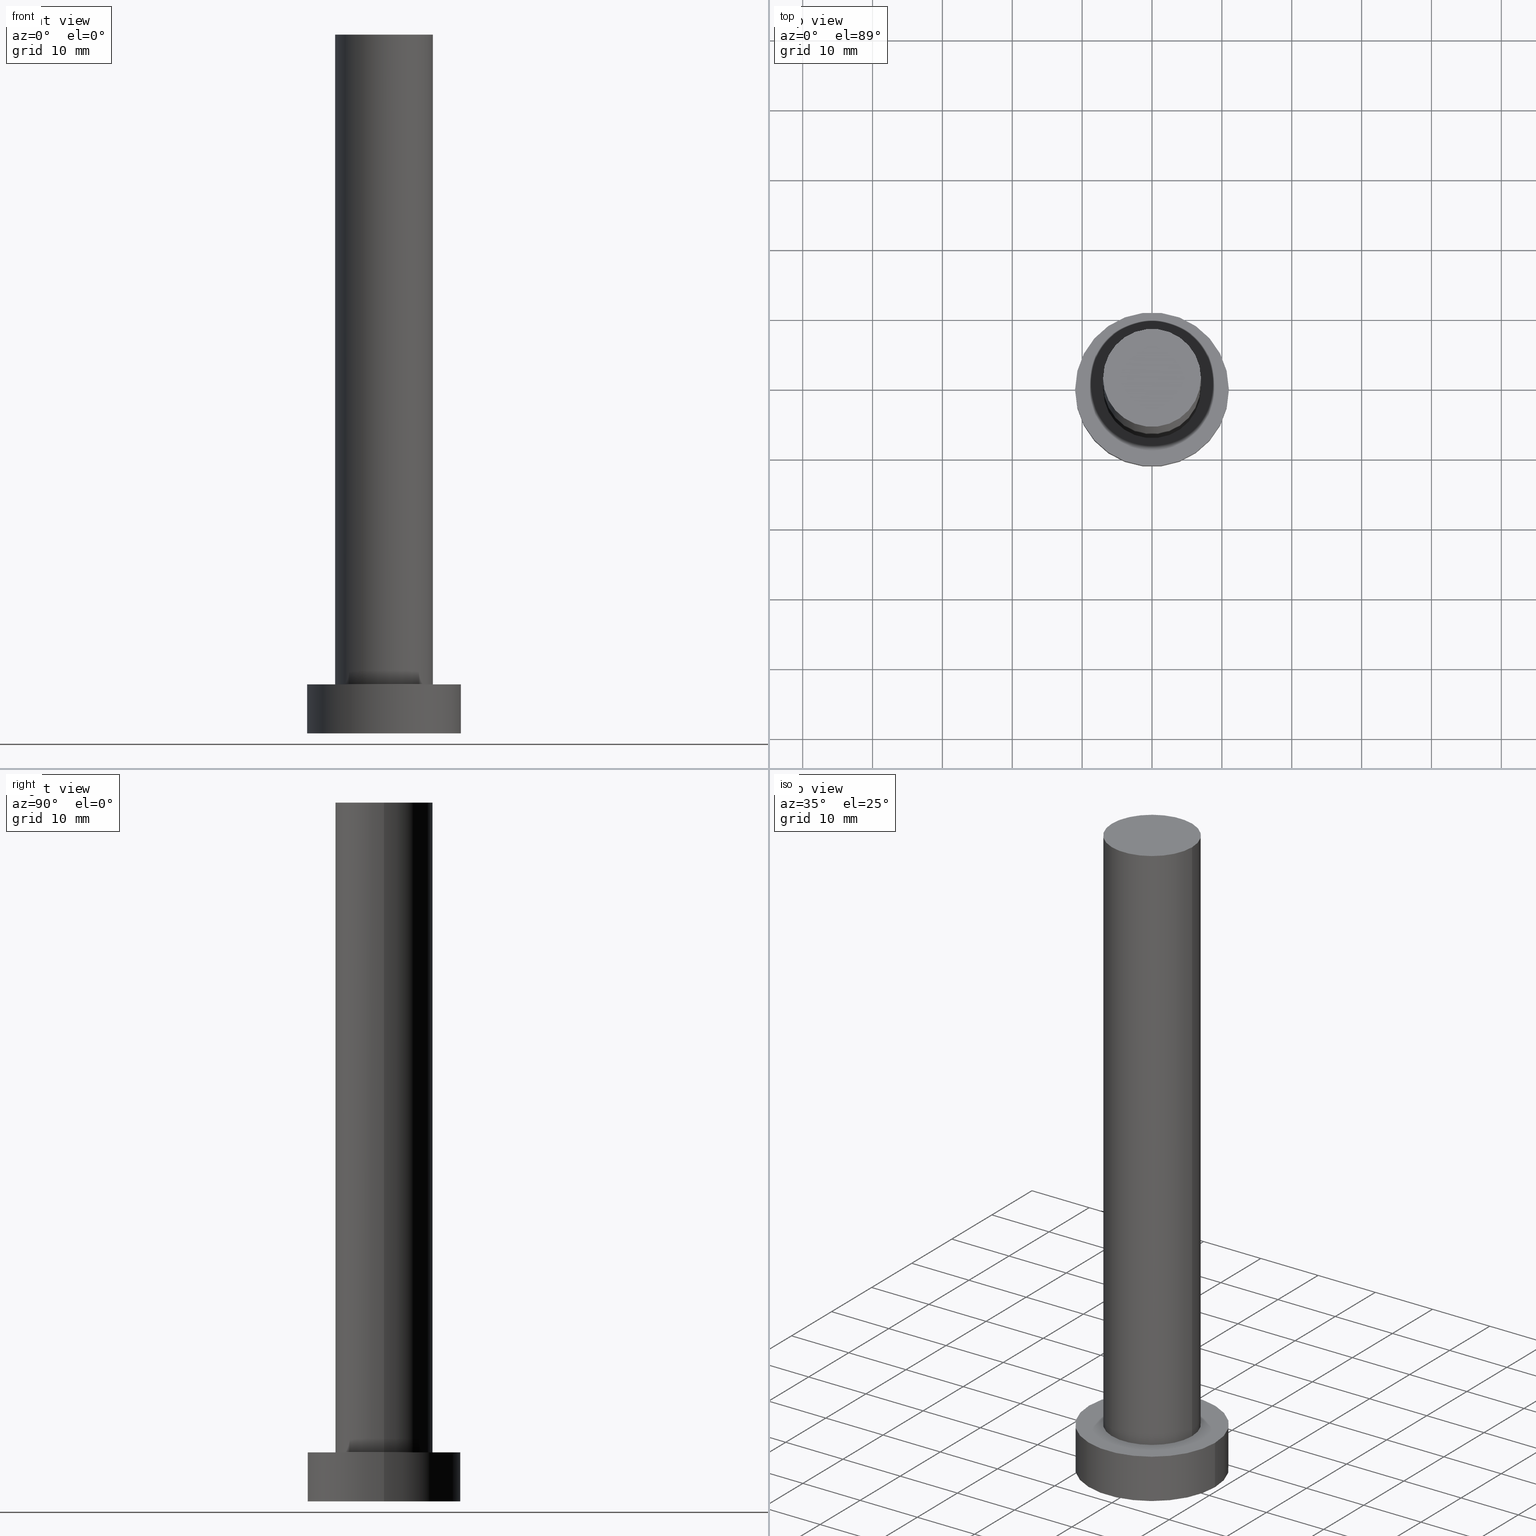
[diagram: canonical four-view strip — front | top / right | iso, engineering-drawing reading convention]
A machine part, canonical four-view strip (front | top / right | iso — engineering-drawing reading convention). The complete STEP part file that produces these views, byte-faithful:
ISO-10303-21;
HEADER;
FILE_DESCRIPTION (( 'STEP AP203' ),
    '1' );
FILE_NAME ('5458.STEP',
    '2023-02-13T08:55:50',
    ( '' ),
    ( '' ),
    'SwSTEP 2.0',
    'SolidWorks 2019',
    '' );
FILE_SCHEMA (( 'CONFIG_CONTROL_DESIGN' ));
ENDSEC;

DATA;
#1 = LINE ( 'NONE', #22, #165 ) ;
#2 = EDGE_CURVE ( 'NONE', #200, #176, #98, .T. ) ;
#3 = ORIENTED_EDGE ( 'NONE', *, *, #239, .F. ) ;
#4 = DATE_TIME_ROLE ( 'classification_date' ) ;
#5 = ORIENTED_EDGE ( 'NONE', *, *, #115, .T. ) ;
#6 = VERTEX_POINT ( 'NONE', #105 ) ;
#7 = COORDINATED_UNIVERSAL_TIME_OFFSET ( 1, 0, .AHEAD. ) ;
#8 = CYLINDRICAL_SURFACE ( 'NONE', #118, 7.000000000000000888 ) ;
#9 = CARTESIAN_POINT ( 'NONE',  ( -11.00000000000000000, 0.000000000000000000, 0.000000000000000000 ) ) ;
#10 = CARTESIAN_POINT ( 'NONE',  ( 0.000000000000000000, 0.000000000000000000, 0.000000000000000000 ) ) ;
#11 = CIRCLE ( 'NONE', #196, 7.000000000000000888 ) ;
#12 = DIRECTION ( 'NONE',  ( -0.000000000000000000, -0.000000000000000000, -1.000000000000000000 ) ) ;
#13 = DIRECTION ( 'NONE',  ( -0.000000000000000000, -0.000000000000000000, -1.000000000000000000 ) ) ;
#14 = AXIS2_PLACEMENT_3D ( 'NONE', #83, #179, #99 ) ;
#15 = CARTESIAN_POINT ( 'NONE',  ( 11.00000000000000000, 1.347111479062088405E-15, 7.000000000000000000 ) ) ;
#16 = PERSON ( 'NEUR�EN�', 'NEUR�EN�', 'NEUR�EN�', ('NEUR�EN�'), ('NEUR�EN�'), ('NEUR�EN�') ) ;
#17 = CARTESIAN_POINT ( 'NONE',  ( 0.000000000000000000, 0.000000000000000000, 0.000000000000000000 ) ) ;
#18 = ORIENTED_EDGE ( 'NONE', *, *, #219, .T. ) ;
#19 = AXIS2_PLACEMENT_3D ( 'NONE', #209, #184, #129 ) ;
#20 = AXIS2_PLACEMENT_3D ( 'NONE', #124, #40, #244 ) ;
#21 = DIRECTION ( 'NONE',  ( -0.000000000000000000, -0.000000000000000000, -1.000000000000000000 ) ) ;
#22 = CARTESIAN_POINT ( 'NONE',  ( -7.000000000000000888, 0.000000000000000000, 100.0000000000000000 ) ) ;
#23 = AXIS2_PLACEMENT_3D ( 'NONE', #17, #135, #92 ) ;
#24 = DIRECTION ( 'NONE',  ( -0.000000000000000000, -0.000000000000000000, -1.000000000000000000 ) ) ;
#25 = CARTESIAN_POINT ( 'NONE',  ( 0.000000000000000000, 0.000000000000000000, 7.000000000000000000 ) ) ;
#26 = CC_DESIGN_DATE_AND_TIME_ASSIGNMENT ( #168, #170, ( #77 ) ) ;
#27 = APPROVAL_DATE_TIME ( #205, #199 ) ;
#28 = ORIENTED_EDGE ( 'NONE', *, *, #55, .F. ) ;
#29 = DIRECTION ( 'NONE',  ( 1.000000000000000000, 0.000000000000000000, -0.000000000000000000 ) ) ;
#30 = SECURITY_CLASSIFICATION_LEVEL ( 'unclassified' ) ;
#31 = FACE_BOUND ( 'NONE', #119, .T. ) ;
#32 = VECTOR ( 'NONE', #177, 1000.000000000000000 ) ;
#33 = CYLINDRICAL_SURFACE ( 'NONE', #94, 11.00000000000000000 ) ;
#34 = CARTESIAN_POINT ( 'NONE',  ( 0.000000000000000000, 0.000000000000000000, 100.0000000000000000 ) ) ;
#35 = AXIS2_PLACEMENT_3D ( 'NONE', #10, #36, #189 ) ;
#36 = DIRECTION ( 'NONE',  ( 0.000000000000000000, 0.000000000000000000, 1.000000000000000000 ) ) ;
#37 = ADVANCED_FACE ( 'NONE', ( #117 ), #8, .T. ) ;
#38 = COORDINATED_UNIVERSAL_TIME_OFFSET ( 1, 0, .AHEAD. ) ;
#39 = PERSON_AND_ORGANIZATION_ROLE ( 'design_owner' ) ;
#40 = DIRECTION ( 'NONE',  ( 0.000000000000000000, 0.000000000000000000, 1.000000000000000000 ) ) ;
#41 = EDGE_CURVE ( 'NONE', #140, #238, #102, .T. ) ;
#42 = CARTESIAN_POINT ( 'NONE',  ( 0.000000000000000000, 0.000000000000000000, 100.0000000000000000 ) ) ;
#43 = ORIENTED_EDGE ( 'NONE', *, *, #197, .T. ) ;
#44 = SECURITY_CLASSIFICATION ( '', '', #30 ) ;
#45 = PERSON_AND_ORGANIZATION ( #16, #52 ) ;
#46 = ADVANCED_FACE ( 'NONE', ( #104 ), #225, .T. ) ;
#47 = DIRECTION ( 'NONE',  ( -1.000000000000000000, 0.000000000000000000, 0.000000000000000000 ) ) ;
#48 = ORIENTED_EDGE ( 'NONE', *, *, #178, .F. ) ;
#49 = DIRECTION ( 'NONE',  ( 1.000000000000000000, 0.000000000000000000, 0.000000000000000000 ) ) ;
#50 = CARTESIAN_POINT ( 'NONE',  ( -7.000000000000000888, 0.000000000000000000, 7.000000000000000000 ) ) ;
#51 = FACE_OUTER_BOUND ( 'NONE', #57, .T. ) ;
#52 = ORGANIZATION ( 'NEUR�EN�', 'NEUR�EN�', '' ) ;
#53 = PRODUCT ( '5458', '5458', '', ( #172 ) ) ;
#54 = LOCAL_TIME ( 9, 55, 50.00000000000000000, #114 ) ;
#55 = EDGE_CURVE ( 'NONE', #140, #6, #222, .T. ) ;
#56 = PERSON_AND_ORGANIZATION ( #16, #52 ) ;
#57 = EDGE_LOOP ( 'NONE', ( #48, #192, #72, #204 ) ) ;
#58 = ORIENTED_EDGE ( 'NONE', *, *, #41, .F. ) ;
#59 = PRODUCT_DEFINITION_SHAPE ( 'NONE', 'NONE',  #77 ) ;
#60 = CARTESIAN_POINT ( 'NONE',  ( 0.000000000000000000, 0.000000000000000000, 7.000000000000000000 ) ) ;
#61 = EDGE_LOOP ( 'NONE', ( #154, #65 ) ) ;
#62 = CIRCLE ( 'NONE', #134, 11.00000000000000000 ) ;
#63 = CC_DESIGN_DATE_AND_TIME_ASSIGNMENT ( #183, #4, ( #44 ) ) ;
#64 = PERSON_AND_ORGANIZATION_ROLE ( 'classification_officer' ) ;
#65 = ORIENTED_EDGE ( 'NONE', *, *, #2, .F. ) ;
#66 = PERSON_AND_ORGANIZATION_ROLE ( 'design_supplier' ) ;
#67 = DIRECTION ( 'NONE',  ( 0.000000000000000000, 0.000000000000000000, 1.000000000000000000 ) ) ;
#68 = AXIS2_PLACEMENT_3D ( 'NONE', #86, #162, #247 ) ;
#69 = PLANE ( 'NONE',  #175 ) ;
#70 = APPROVAL ( #193, 'NEUR�EN�' ) ;
#71 = DATE_AND_TIME ( #155, #54 ) ;
#72 = ORIENTED_EDGE ( 'NONE', *, *, #2, .T. ) ;
#73 = CALENDAR_DATE ( 2023, 13, 2 ) ;
#74 = APPROVAL_PERSON_ORGANIZATION ( #246, #199, #125 ) ;
#75 = CC_DESIGN_PERSON_AND_ORGANIZATION_ASSIGNMENT ( #103, #66, ( #120 ) ) ;
#76 = VERTEX_POINT ( 'NONE', #206 ) ;
#77 = PRODUCT_DEFINITION ( 'NEZN�M�', '', #120, #112 ) ;
#78 = DIRECTION ( 'NONE',  ( -0.000000000000000000, -0.000000000000000000, -1.000000000000000000 ) ) ;
#79 = FACE_OUTER_BOUND ( 'NONE', #95, .T. ) ;
#80 = CARTESIAN_POINT ( 'NONE',  ( 0.000000000000000000, 0.000000000000000000, 100.0000000000000000 ) ) ;
#81 = DIRECTION ( 'NONE',  ( 0.000000000000000000, 0.000000000000000000, 1.000000000000000000 ) ) ;
#82 = CIRCLE ( 'NONE', #35, 11.00000000000000000 ) ;
#83 = CARTESIAN_POINT ( 'NONE',  ( 0.000000000000000000, 0.000000000000000000, 100.0000000000000000 ) ) ;
#84 = DIRECTION ( 'NONE',  ( 0.000000000000000000, 0.000000000000000000, 1.000000000000000000 ) ) ;
#85 = CALENDAR_DATE ( 2023, 13, 2 ) ;
#86 = CARTESIAN_POINT ( 'NONE',  ( 0.000000000000000000, 0.000000000000000000, 7.000000000000000000 ) ) ;
#87 = CIRCLE ( 'NONE', #145, 7.000000000000000888 ) ;
#88 = APPROVAL_PERSON_ORGANIZATION ( #231, #241, #216 ) ;
#89 = CARTESIAN_POINT ( 'NONE',  ( 7.000000000000000888, 8.572527594031472204E-16, 100.0000000000000000 ) ) ;
#90 = CARTESIAN_POINT ( 'NONE',  ( 0.000000000000000000, 0.000000000000000000, 100.0000000000000000 ) ) ;
#91 =( NAMED_UNIT ( * ) PLANE_ANGLE_UNIT ( ) SI_UNIT ( $, .RADIAN. ) );
#92 = DIRECTION ( 'NONE',  ( 1.000000000000000000, 0.000000000000000000, 0.000000000000000000 ) ) ;
#93 = DATE_AND_TIME ( #73, #235 ) ;
#94 = AXIS2_PLACEMENT_3D ( 'NONE', #108, #12, #248 ) ;
#95 = EDGE_LOOP ( 'NONE', ( #3, #223, #43, #220 ) ) ;
#96 = EDGE_CURVE ( 'NONE', #6, #237, #1, .T. ) ;
#97 = CC_DESIGN_PERSON_AND_ORGANIZATION_ASSIGNMENT ( #45, #64, ( #44 ) ) ;
#98 = CIRCLE ( 'NONE', #20, 11.00000000000000000 ) ;
#99 = DIRECTION ( 'NONE',  ( 1.000000000000000000, 0.000000000000000000, 0.000000000000000000 ) ) ;
#100 = ORIENTED_EDGE ( 'NONE', *, *, #178, .T. ) ;
#101 = ADVANCED_FACE ( 'NONE', ( #79 ), #156, .T. ) ;
#102 = LINE ( 'NONE', #221, #32 ) ;
#103 = PERSON_AND_ORGANIZATION ( #16, #52 ) ;
#104 = FACE_OUTER_BOUND ( 'NONE', #215, .T. ) ;
#105 = CARTESIAN_POINT ( 'NONE',  ( -7.000000000000000888, 0.000000000000000000, 100.0000000000000000 ) ) ;
#106 = CARTESIAN_POINT ( 'NONE',  ( 0.000000000000000000, 0.000000000000000000, 7.000000000000000000 ) ) ;
#107 = AXIS2_PLACEMENT_3D ( 'NONE', #80, #21, #157 ) ;
#108 = CARTESIAN_POINT ( 'NONE',  ( 0.000000000000000000, 0.000000000000000000, 7.000000000000000000 ) ) ;
#109 = LOCAL_TIME ( 9, 55, 50.00000000000000000, #191 ) ;
#110 = LOCAL_TIME ( 9, 55, 50.00000000000000000, #243 ) ;
#111 = PLANE ( 'NONE',  #187 ) ;
#112 = DESIGN_CONTEXT ( 'detailed design', #182, 'design' ) ;
#113 = PERSON_AND_ORGANIZATION ( #16, #52 ) ;
#114 = COORDINATED_UNIVERSAL_TIME_OFFSET ( 1, 0, .AHEAD. ) ;
#115 = EDGE_CURVE ( 'NONE', #238, #237, #87, .T. ) ;
#116 = CIRCLE ( 'NONE', #68, 11.00000000000000000 ) ;
#117 = FACE_OUTER_BOUND ( 'NONE', #255, .T. ) ;
#118 = AXIS2_PLACEMENT_3D ( 'NONE', #42, #24, #198 ) ;
#119 = EDGE_LOOP ( 'NONE', ( #174, #138 ) ) ;
#120 = PRODUCT_DEFINITION_FORMATION_WITH_SPECIFIED_SOURCE ( 'LIBOVOLN�', '', #53, .NOT_KNOWN. ) ;
#121 = EDGE_LOOP ( 'NONE', ( #18, #100 ) ) ;
#122 = CC_DESIGN_SECURITY_CLASSIFICATION ( #44, ( #120 ) ) ;
#123 = SHAPE_DEFINITION_REPRESENTATION ( #59, #173 ) ;
#124 = CARTESIAN_POINT ( 'NONE',  ( 0.000000000000000000, 0.000000000000000000, 0.000000000000000000 ) ) ;
#125 = APPROVAL_ROLE ( '' ) ;
#126 = ORIENTED_EDGE ( 'NONE', *, *, #142, .F. ) ;
#127 = DIRECTION ( 'NONE',  ( 1.000000000000000000, 0.000000000000000000, 0.000000000000000000 ) ) ;
#128 = DIRECTION ( 'NONE',  ( 1.000000000000000000, 0.000000000000000000, -0.000000000000000000 ) ) ;
#129 = DIRECTION ( 'NONE',  ( 1.000000000000000000, 0.000000000000000000, 0.000000000000000000 ) ) ;
#130 = PERSON_AND_ORGANIZATION_ROLE ( 'creator' ) ;
#131 = PLANE ( 'NONE',  #132 ) ;
#132 = AXIS2_PLACEMENT_3D ( 'NONE', #208, #212, #128 ) ;
#133 = LINE ( 'NONE', #228, #217 ) ;
#134 = AXIS2_PLACEMENT_3D ( 'NONE', #106, #84, #167 ) ;
#135 = DIRECTION ( 'NONE',  ( 0.000000000000000000, 0.000000000000000000, 1.000000000000000000 ) ) ;
#136 =( GEOMETRIC_REPRESENTATION_CONTEXT ( 3 ) GLOBAL_UNCERTAINTY_ASSIGNED_CONTEXT ( ( #251 ) ) GLOBAL_UNIT_ASSIGNED_CONTEXT ( ( #210, #91, #169 ) ) REPRESENTATION_CONTEXT ( 'NONE', 'WORKASPACE' ) );
#137 = ORIENTED_EDGE ( 'NONE', *, *, #142, .T. ) ;
#138 = ORIENTED_EDGE ( 'NONE', *, *, #115, .F. ) ;
#139 = ORIENTED_EDGE ( 'NONE', *, *, #194, .T. ) ;
#140 = VERTEX_POINT ( 'NONE', #89 ) ;
#141 = DIRECTION ( 'NONE',  ( -0.000000000000000000, -0.000000000000000000, -1.000000000000000000 ) ) ;
#142 = EDGE_CURVE ( 'NONE', #6, #140, #11, .T. ) ;
#143 = FACE_OUTER_BOUND ( 'NONE', #121, .T. ) ;
#144 = DIRECTION ( 'NONE',  ( 0.000000000000000000, 0.000000000000000000, 1.000000000000000000 ) ) ;
#145 = AXIS2_PLACEMENT_3D ( 'NONE', #25, #81, #49 ) ;
#146 = LINE ( 'NONE', #15, #201 ) ;
#147 = PERSON_AND_ORGANIZATION ( #16, #52 ) ;
#148 = MANIFOLD_SOLID_BREP ( 'P�idat vysunut�m3', #213 ) ;
#149 = DIRECTION ( 'NONE',  ( -0.000000000000000000, -0.000000000000000000, -1.000000000000000000 ) ) ;
#150 = APPROVAL_ROLE ( '' ) ;
#151 = CC_DESIGN_PERSON_AND_ORGANIZATION_ASSIGNMENT ( #147, #130, ( #77 ) ) ;
#152 = PERSON_AND_ORGANIZATION ( #16, #52 ) ;
#153 = CC_DESIGN_APPROVAL ( #241, ( #120 ) ) ;
#154 = ORIENTED_EDGE ( 'NONE', *, *, #211, .F. ) ;
#155 = CALENDAR_DATE ( 2023, 13, 2 ) ;
#156 = CYLINDRICAL_SURFACE ( 'NONE', #224, 11.00000000000000000 ) ;
#157 = DIRECTION ( 'NONE',  ( -1.000000000000000000, 0.000000000000000000, 0.000000000000000000 ) ) ;
#158 = ADVANCED_FACE ( 'NONE', ( #207 ), #69, .T. ) ;
#159 = ORIENTED_EDGE ( 'NONE', *, *, #55, .T. ) ;
#160 = CC_DESIGN_PERSON_AND_ORGANIZATION_ASSIGNMENT ( #152, #234, ( #120 ) ) ;
#161 = ORIENTED_EDGE ( 'NONE', *, *, #96, .T. ) ;
#162 = DIRECTION ( 'NONE',  ( 0.000000000000000000, 0.000000000000000000, 1.000000000000000000 ) ) ;
#163 = APPROVAL_STATUS ( 'not_yet_approved' ) ;
#164 = CARTESIAN_POINT ( 'NONE',  ( 11.00000000000000000, 1.347111479062088405E-15, 0.000000000000000000 ) ) ;
#165 = VECTOR ( 'NONE', #78, 1000.000000000000000 ) ;
#166 = ADVANCED_FACE ( 'NONE', ( #31, #143 ), #131, .T. ) ;
#167 = DIRECTION ( 'NONE',  ( 1.000000000000000000, 0.000000000000000000, 0.000000000000000000 ) ) ;
#168 = DATE_AND_TIME ( #188, #109 ) ;
#169 =( NAMED_UNIT ( * ) SI_UNIT ( $, .STERADIAN. ) SOLID_ANGLE_UNIT ( ) );
#170 = DATE_TIME_ROLE ( 'creation_date' ) ;
#171 = ADVANCED_FACE ( 'NONE', ( #181 ), #111, .F. ) ;
#172 = MECHANICAL_CONTEXT ( 'NONE', #236, 'mechanical' ) ;
#173 = ADVANCED_BREP_SHAPE_REPRESENTATION ( '5458', ( #148, #23 ), #136 ) ;
#174 = ORIENTED_EDGE ( 'NONE', *, *, #194, .F. ) ;
#175 = AXIS2_PLACEMENT_3D ( 'NONE', #34, #144, #29 ) ;
#176 = VERTEX_POINT ( 'NONE', #9 ) ;
#177 = DIRECTION ( 'NONE',  ( -0.000000000000000000, -0.000000000000000000, -1.000000000000000000 ) ) ;
#178 = EDGE_CURVE ( 'NONE', #76, #232, #62, .T. ) ;
#179 = DIRECTION ( 'NONE',  ( 0.000000000000000000, 0.000000000000000000, 1.000000000000000000 ) ) ;
#180 = ORIENTED_EDGE ( 'NONE', *, *, #41, .T. ) ;
#181 = FACE_OUTER_BOUND ( 'NONE', #61, .T. ) ;
#182 = APPLICATION_CONTEXT ( 'configuration controlled 3d designs of mechanical parts and assemblies' ) ;
#183 = DATE_AND_TIME ( #85, #186 ) ;
#184 = DIRECTION ( 'NONE',  ( 0.000000000000000000, 0.000000000000000000, 1.000000000000000000 ) ) ;
#185 = DIRECTION ( 'NONE',  ( 1.000000000000000000, 0.000000000000000000, -0.000000000000000000 ) ) ;
#186 = LOCAL_TIME ( 9, 55, 50.00000000000000000, #7 ) ;
#187 = AXIS2_PLACEMENT_3D ( 'NONE', #230, #227, #185 ) ;
#188 = CALENDAR_DATE ( 2023, 13, 2 ) ;
#189 = DIRECTION ( 'NONE',  ( 1.000000000000000000, 0.000000000000000000, 0.000000000000000000 ) ) ;
#190 = APPROVAL_STATUS ( 'not_yet_approved' ) ;
#191 = COORDINATED_UNIVERSAL_TIME_OFFSET ( 1, 0, .AHEAD. ) ;
#192 = ORIENTED_EDGE ( 'NONE', *, *, #239, .T. ) ;
#193 = APPROVAL_STATUS ( 'not_yet_approved' ) ;
#194 = EDGE_CURVE ( 'NONE', #237, #238, #242, .T. ) ;
#195 = PRODUCT_RELATED_PRODUCT_CATEGORY ( 'detail', '', ( #53 ) ) ;
#196 = AXIS2_PLACEMENT_3D ( 'NONE', #90, #67, #127 ) ;
#197 = EDGE_CURVE ( 'NONE', #232, #176, #133, .T. ) ;
#198 = DIRECTION ( 'NONE',  ( -1.000000000000000000, 0.000000000000000000, 0.000000000000000000 ) ) ;
#199 = APPROVAL ( #163, 'NEUR�EN�' ) ;
#200 = VERTEX_POINT ( 'NONE', #164 ) ;
#201 = VECTOR ( 'NONE', #149, 1000.000000000000000 ) ;
#202 = CALENDAR_DATE ( 2023, 13, 2 ) ;
#203 = CC_DESIGN_APPROVAL ( #70, ( #77 ) ) ;
#204 = ORIENTED_EDGE ( 'NONE', *, *, #197, .F. ) ;
#205 = DATE_AND_TIME ( #202, #110 ) ;
#206 = CARTESIAN_POINT ( 'NONE',  ( 11.00000000000000000, 1.347111479062088405E-15, 7.000000000000000000 ) ) ;
#207 = FACE_OUTER_BOUND ( 'NONE', #240, .T. ) ;
#208 = CARTESIAN_POINT ( 'NONE',  ( 0.000000000000000000, 0.000000000000000000, 7.000000000000000000 ) ) ;
#209 = CARTESIAN_POINT ( 'NONE',  ( 0.000000000000000000, 0.000000000000000000, 7.000000000000000000 ) ) ;
#210 =( LENGTH_UNIT ( ) NAMED_UNIT ( * ) SI_UNIT ( .MILLI., .METRE. ) );
#211 = EDGE_CURVE ( 'NONE', #176, #200, #82, .T. ) ;
#212 = DIRECTION ( 'NONE',  ( 0.000000000000000000, 0.000000000000000000, 1.000000000000000000 ) ) ;
#213 = CLOSED_SHELL ( 'NONE', ( #37, #254, #101, #166, #171, #46, #158 ) ) ;
#214 = APPROVAL_DATE_TIME ( #71, #70 ) ;
#215 = EDGE_LOOP ( 'NONE', ( #58, #126, #161, #139 ) ) ;
#216 = APPROVAL_ROLE ( '' ) ;
#217 = VECTOR ( 'NONE', #13, 1000.000000000000000 ) ;
#218 = APPLICATION_PROTOCOL_DEFINITION ( 'international standard', 'config_control_design', 1994, #236 ) ;
#219 = EDGE_CURVE ( 'NONE', #232, #76, #116, .T. ) ;
#220 = ORIENTED_EDGE ( 'NONE', *, *, #211, .T. ) ;
#221 = CARTESIAN_POINT ( 'NONE',  ( 7.000000000000000888, 8.572527594031472204E-16, 100.0000000000000000 ) ) ;
#222 = CIRCLE ( 'NONE', #14, 7.000000000000000888 ) ;
#223 = ORIENTED_EDGE ( 'NONE', *, *, #219, .F. ) ;
#224 = AXIS2_PLACEMENT_3D ( 'NONE', #60, #141, #47 ) ;
#225 = CYLINDRICAL_SURFACE ( 'NONE', #107, 7.000000000000000888 ) ;
#226 = ORIENTED_EDGE ( 'NONE', *, *, #96, .F. ) ;
#227 = DIRECTION ( 'NONE',  ( 0.000000000000000000, 0.000000000000000000, 1.000000000000000000 ) ) ;
#228 = CARTESIAN_POINT ( 'NONE',  ( -11.00000000000000000, 0.000000000000000000, 7.000000000000000000 ) ) ;
#229 = CARTESIAN_POINT ( 'NONE',  ( 7.000000000000000888, 8.572527594031472204E-16, 7.000000000000000000 ) ) ;
#230 = CARTESIAN_POINT ( 'NONE',  ( 0.000000000000000000, 0.000000000000000000, 0.000000000000000000 ) ) ;
#231 = PERSON_AND_ORGANIZATION ( #16, #52 ) ;
#232 = VERTEX_POINT ( 'NONE', #245 ) ;
#233 = APPROVAL_PERSON_ORGANIZATION ( #113, #70, #150 ) ;
#234 = PERSON_AND_ORGANIZATION_ROLE ( 'creator' ) ;
#235 = LOCAL_TIME ( 9, 55, 50.00000000000000000, #38 ) ;
#236 = APPLICATION_CONTEXT ( 'configuration controlled 3d designs of mechanical parts and assemblies' ) ;
#237 = VERTEX_POINT ( 'NONE', #50 ) ;
#238 = VERTEX_POINT ( 'NONE', #229 ) ;
#239 = EDGE_CURVE ( 'NONE', #76, #200, #146, .T. ) ;
#240 = EDGE_LOOP ( 'NONE', ( #137, #159 ) ) ;
#241 = APPROVAL ( #190, 'NEUR�EN�' ) ;
#242 = CIRCLE ( 'NONE', #19, 7.000000000000000888 ) ;
#243 = COORDINATED_UNIVERSAL_TIME_OFFSET ( 1, 0, .AHEAD. ) ;
#244 = DIRECTION ( 'NONE',  ( 1.000000000000000000, 0.000000000000000000, 0.000000000000000000 ) ) ;
#245 = CARTESIAN_POINT ( 'NONE',  ( -11.00000000000000000, 0.000000000000000000, 7.000000000000000000 ) ) ;
#246 = PERSON_AND_ORGANIZATION ( #16, #52 ) ;
#247 = DIRECTION ( 'NONE',  ( 1.000000000000000000, 0.000000000000000000, 0.000000000000000000 ) ) ;
#248 = DIRECTION ( 'NONE',  ( -1.000000000000000000, 0.000000000000000000, 0.000000000000000000 ) ) ;
#249 = APPLICATION_PROTOCOL_DEFINITION ( 'international standard', 'config_control_design', 1994, #182 ) ;
#250 = CC_DESIGN_PERSON_AND_ORGANIZATION_ASSIGNMENT ( #56, #39, ( #53 ) ) ;
#251 = UNCERTAINTY_MEASURE_WITH_UNIT (LENGTH_MEASURE( 1.000000000000000082E-05 ), #210, 'distance_accuracy_value', 'NONE');
#252 = APPROVAL_DATE_TIME ( #93, #241 ) ;
#253 = CC_DESIGN_APPROVAL ( #199, ( #44 ) ) ;
#254 = ADVANCED_FACE ( 'NONE', ( #51 ), #33, .T. ) ;
#255 = EDGE_LOOP ( 'NONE', ( #28, #180, #5, #226 ) ) ;
ENDSEC;
END-ISO-10303-21;
